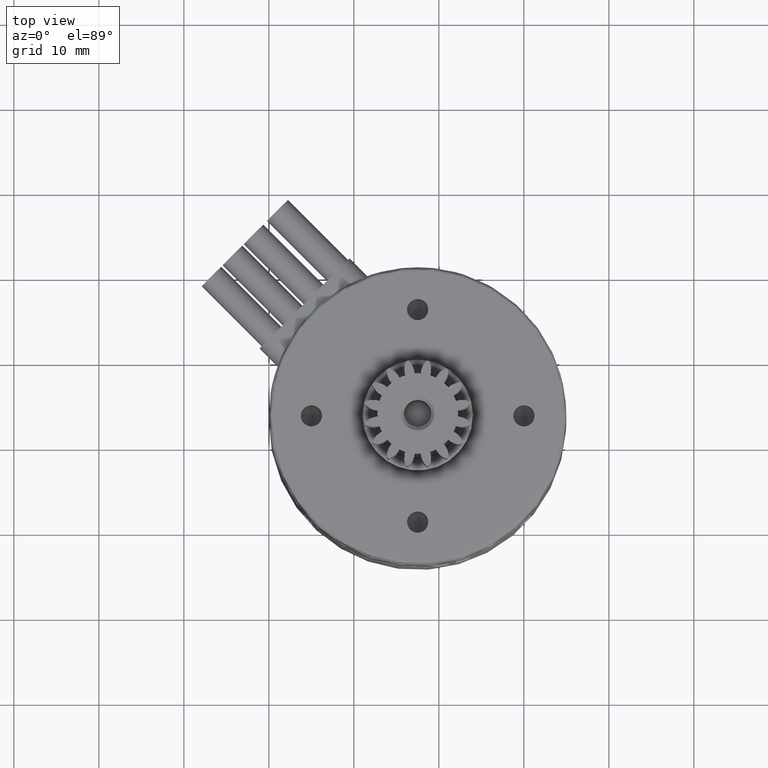
[diagram: clean part render]
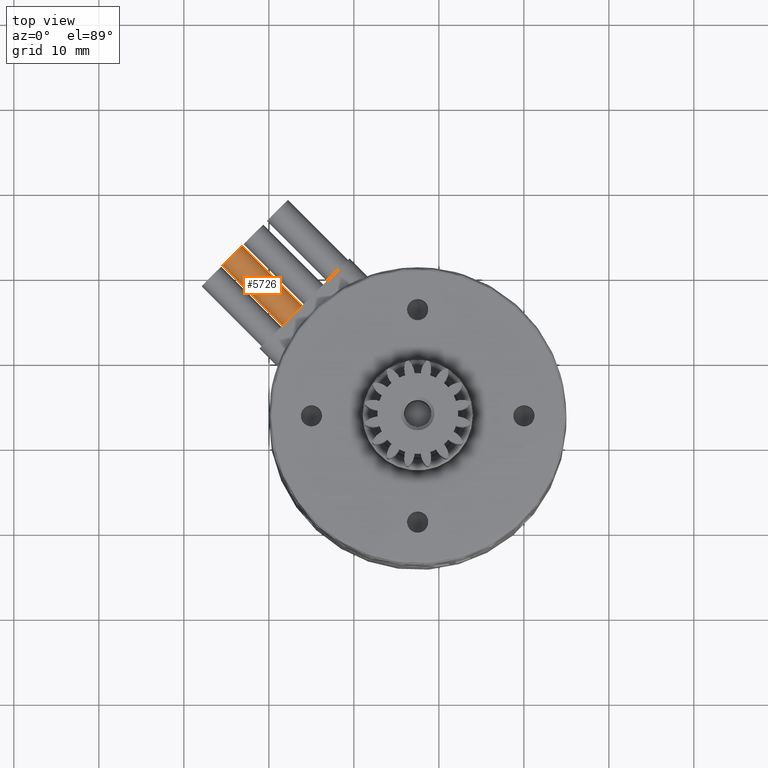
[diagram: same view with one face highlighted and labeled with its STEP entity id]
A machine part, top view. The second image highlights one B-rep face of the part: STEP entity #5726.
In plain terms, the highlighted cylindrical surface (bore or boss wall) has radius 1.625 mm, axis along (0.7071, -0.7071, 0).
Its self-contained STEP definition (entity closure, byte-faithful):
#293 = VERTEX_POINT ( 'NONE', #6898 ) ;
#493 = VERTEX_POINT ( 'NONE', #7107 ) ;
#1786 = AXIS2_PLACEMENT_3D ( 'NONE', #11284, #17892, #2967 ) ;
#2453 = CIRCLE ( 'NONE', #1786, 1.624999999999995559 ) ;
#2906 = CARTESIAN_POINT ( 'NONE',  ( -4.286941605297158731, 22.20851448055095645, -4.999999999999997335 ) ) ;
#2967 = DIRECTION ( 'NONE',  ( -0.7071067811865480168, -0.7071067811865470176, 0.0000000000000000000 ) ) ;
#4720 = ORIENTED_EDGE ( 'NONE', *, *, #19823, .F. ) ;
#5726 = ADVANCED_FACE ( 'NONE', ( #14380, #20991 ), #6064, .T. ) ;
#5951 = DIRECTION ( 'NONE',  ( 0.7071067811865474617, -0.7071067811865475727, 4.357881996052617579E-33 ) ) ;
#6064 = CYLINDRICAL_SURFACE ( 'NONE', #14097, 1.624999999999995559 ) ;
#6898 = CARTESIAN_POINT ( 'NONE',  ( -5.435990124725296191, 21.05946596112281810, -4.999999999999997335 ) ) ;
#7107 = CARTESIAN_POINT ( 'NONE',  ( 1.635077687140178426, 13.98839814925734437, -4.999999999999997335 ) ) ;
#7699 = ORIENTED_EDGE ( 'NONE', *, *, #14348, .T. ) ;
#8540 = CIRCLE ( 'NONE', #12393, 1.624999999999996891 ) ;
#9570 = DIRECTION ( 'NONE',  ( 0.7071067811865474617, -0.7071067811865475727, 4.357881996052617579E-33 ) ) ;
#11284 = CARTESIAN_POINT ( 'NONE',  ( -4.286941605297158731, 22.20851448055095645, -4.999999999999997335 ) ) ;
#12393 = AXIS2_PLACEMENT_3D ( 'NONE', #20876, #5951, #12646 ) ;
#12646 = DIRECTION ( 'NONE',  ( -0.7071067811865474617, -0.7071067811865474617, 0.0000000000000000000 ) ) ;
#14097 = AXIS2_PLACEMENT_3D ( 'NONE', #2906, #9570, #16210 ) ;
#14348 = EDGE_CURVE ( 'NONE', #293, #293, #2453, .T. ) ;
#14380 = FACE_OUTER_BOUND ( 'NONE', #19583, .T. ) ;
#16114 = EDGE_LOOP ( 'NONE', ( #7699 ) ) ;
#16210 = DIRECTION ( 'NONE',  ( -0.7071067811865480168, -0.7071067811865470176, 0.0000000000000000000 ) ) ;
#17892 = DIRECTION ( 'NONE',  ( 0.7071067811865474617, -0.7071067811865475727, 4.357881996052617579E-33 ) ) ;
#19583 = EDGE_LOOP ( 'NONE', ( #4720 ) ) ;
#19823 = EDGE_CURVE ( 'NONE', #493, #493, #8540, .T. ) ;
#20876 = CARTESIAN_POINT ( 'NONE',  ( 2.784126206568315887, 15.13744666868548272, -4.999999999999997335 ) ) ;
#20991 = FACE_OUTER_BOUND ( 'NONE', #16114, .T. ) ;